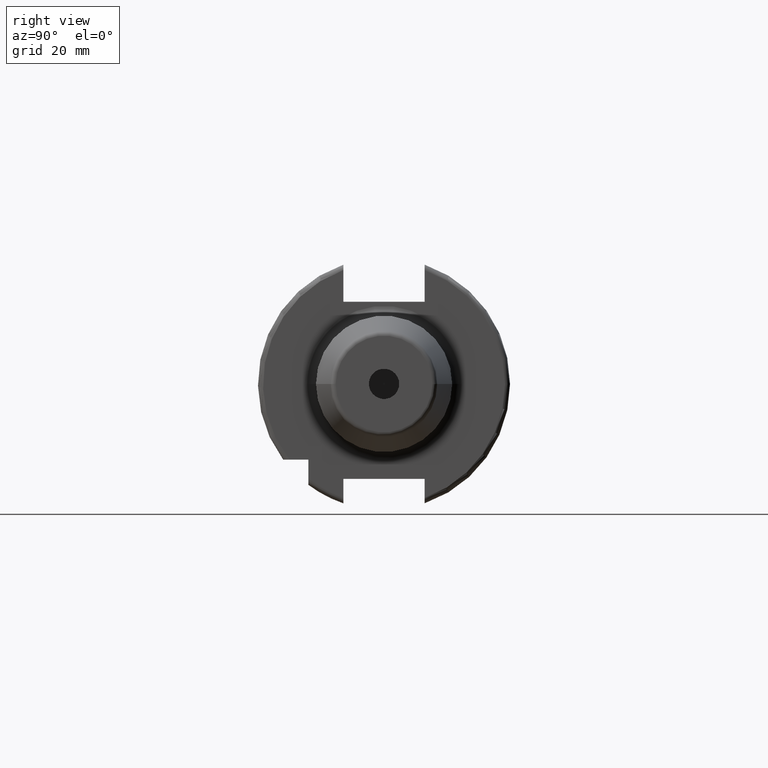
[diagram: clean part render]
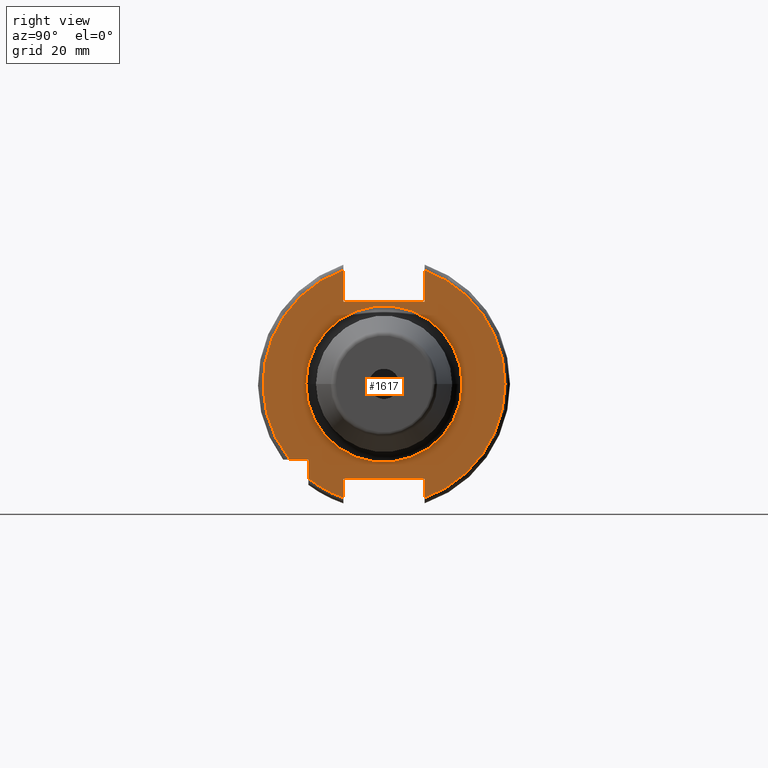
[diagram: same view with one face highlighted and labeled with its STEP entity id]
A machine part, right view. The second image highlights one B-rep face of the part: STEP entity #1617.
In plain terms, the highlighted planar face has unit normal (1, 0, 0).
Its self-contained STEP definition (entity closure, byte-faithful):
#136=DIRECTION('',(0.E0,0.E0,1.E0));
#137=VECTOR('',#136,3.799061927434E0);
#138=CARTESIAN_POINT('',(1.905E1,8.05E0,-2.259906192743E1));
#139=LINE('',#138,#137);
#140=DIRECTION('',(0.E0,-1.E0,0.E0));
#141=VECTOR('',#140,1.61E1);
#142=CARTESIAN_POINT('',(1.905E1,8.05E0,-1.88E1));
#143=LINE('',#142,#141);
#144=DIRECTION('',(0.E0,0.E0,1.E0));
#145=VECTOR('',#144,3.799061927434E0);
#146=CARTESIAN_POINT('',(1.905E1,-8.05E0,-2.259906192743E1));
#147=LINE('',#146,#145);
#148=DIRECTION('',(0.E0,0.E0,1.E0));
#149=VECTOR('',#148,3.722182030949E0);
#150=CARTESIAN_POINT('',(1.905E1,-1.5E1,-1.872218203095E1));
#151=LINE('',#150,#149);
#152=DIRECTION('',(0.E0,1.E0,0.E0));
#153=VECTOR('',#152,3.722182030949E0);
#154=CARTESIAN_POINT('',(1.905E1,-1.872218203095E1,-1.5E1));
#155=LINE('',#154,#153);
#156=DIRECTION('',(0.E0,0.E0,-1.E0));
#157=VECTOR('',#156,6.299061927434E0);
#158=CARTESIAN_POINT('',(1.905E1,-8.05E0,2.259906192743E1));
#159=LINE('',#158,#157);
#160=DIRECTION('',(0.E0,1.E0,0.E0));
#161=VECTOR('',#160,1.61E1);
#162=CARTESIAN_POINT('',(1.905E1,-8.05E0,1.63E1));
#163=LINE('',#162,#161);
#164=DIRECTION('',(0.E0,0.E0,-1.E0));
#165=VECTOR('',#164,6.299061927434E0);
#166=CARTESIAN_POINT('',(1.905E1,8.05E0,2.259906192743E1));
#167=LINE('',#166,#165);
#168=CARTESIAN_POINT('',(1.905E1,0.E0,0.E0));
#169=DIRECTION('',(1.E0,0.E0,0.E0));
#170=DIRECTION('',(0.E0,-1.E0,0.E0));
#171=AXIS2_PLACEMENT_3D('',#168,#169,#170);
#173=CARTESIAN_POINT('',(1.905E1,0.E0,0.E0));
#174=DIRECTION('',(1.E0,0.E0,0.E0));
#175=DIRECTION('',(0.E0,1.E0,0.E0));
#176=AXIS2_PLACEMENT_3D('',#173,#174,#175);
#640=CARTESIAN_POINT('',(1.905E1,0.E0,0.E0));
#641=DIRECTION('',(-1.E0,0.E0,0.E0));
#642=DIRECTION('',(0.E0,-3.355564818674E-1,-9.420200886800E-1));
#643=AXIS2_PLACEMENT_3D('',#640,#641,#642);
#645=CARTESIAN_POINT('',(1.905E1,0.E0,0.E0));
#646=DIRECTION('',(1.E0,0.E0,0.E0));
#647=DIRECTION('',(0.E0,-3.355564818674E-1,9.420200886800E-1));
#648=AXIS2_PLACEMENT_3D('',#645,#646,#647);
#692=CARTESIAN_POINT('',(1.905E1,0.E0,0.E0));
#693=DIRECTION('',(1.E0,0.E0,0.E0));
#694=DIRECTION('',(0.E0,3.355564818674E-1,-9.420200886800E-1));
#695=AXIS2_PLACEMENT_3D('',#692,#693,#694);
#1302=CARTESIAN_POINT('',(1.905E1,8.05E0,-2.259906192743E1));
#1303=CARTESIAN_POINT('',(1.905E1,8.05E0,-1.88E1));
#1304=VERTEX_POINT('',#1302);
#1305=VERTEX_POINT('',#1303);
#1306=CARTESIAN_POINT('',(1.905E1,-8.05E0,-1.88E1));
#1307=VERTEX_POINT('',#1306);
#1308=CARTESIAN_POINT('',(1.905E1,-8.05E0,-2.259906192743E1));
#1309=VERTEX_POINT('',#1308);
#1310=CARTESIAN_POINT('',(1.905E1,-8.05E0,2.259906192743E1));
#1311=CARTESIAN_POINT('',(1.905E1,-8.05E0,1.63E1));
#1312=VERTEX_POINT('',#1310);
#1313=VERTEX_POINT('',#1311);
#1314=CARTESIAN_POINT('',(1.905E1,8.05E0,1.63E1));
#1315=VERTEX_POINT('',#1314);
#1316=CARTESIAN_POINT('',(1.905E1,8.05E0,2.259906192743E1));
#1317=VERTEX_POINT('',#1316);
#1318=CARTESIAN_POINT('',(1.905E1,-1.5E1,-1.872218203095E1));
#1319=CARTESIAN_POINT('',(1.905E1,-1.5E1,-1.5E1));
#1320=VERTEX_POINT('',#1318);
#1321=VERTEX_POINT('',#1319);
#1322=CARTESIAN_POINT('',(1.905E1,-1.872218203095E1,-1.5E1));
#1323=VERTEX_POINT('',#1322);
#1394=CARTESIAN_POINT('',(1.905E1,-1.55E1,0.E0));
#1395=CARTESIAN_POINT('',(1.905E1,1.55E1,0.E0));
#1396=VERTEX_POINT('',#1394);
#1397=VERTEX_POINT('',#1395);
#1583=CARTESIAN_POINT('',(1.905E1,0.E0,0.E0));
#1584=DIRECTION('',(1.E0,0.E0,0.E0));
#1585=DIRECTION('',(0.E0,-1.E0,0.E0));
#1586=AXIS2_PLACEMENT_3D('',#1583,#1584,#1585);
#1587=PLANE('',#1586);
#1589=ORIENTED_EDGE('',*,*,#1588,.T.);
#1591=ORIENTED_EDGE('',*,*,#1590,.T.);
#1593=ORIENTED_EDGE('',*,*,#1592,.F.);
#1595=ORIENTED_EDGE('',*,*,#1594,.T.);
#1597=ORIENTED_EDGE('',*,*,#1596,.T.);
#1599=ORIENTED_EDGE('',*,*,#1598,.F.);
#1601=ORIENTED_EDGE('',*,*,#1600,.F.);
#1603=ORIENTED_EDGE('',*,*,#1602,.T.);
#1604=ORIENTED_EDGE('',*,*,#1569,.T.);
#1606=ORIENTED_EDGE('',*,*,#1605,.F.);
#1608=ORIENTED_EDGE('',*,*,#1607,.F.);
#1609=EDGE_LOOP('',(#1589,#1591,#1593,#1595,#1597,#1599,#1601,#1603,#1604,#1606,
#1608));
#1610=FACE_OUTER_BOUND('',#1609,.F.);
#1612=ORIENTED_EDGE('',*,*,#1611,.T.);
#1614=ORIENTED_EDGE('',*,*,#1613,.T.);
#1615=EDGE_LOOP('',(#1612,#1614));
#1616=FACE_BOUND('',#1615,.F.);
#1617=ADVANCED_FACE('',(#1610,#1616),#1587,.T.);
#172=CIRCLE('',#171,1.55E1);
#177=CIRCLE('',#176,1.55E1);
#644=CIRCLE('',#643,2.399E1);
#649=CIRCLE('',#648,2.399E1);
#696=CIRCLE('',#695,2.399E1);
#1569=EDGE_CURVE('',#1313,#1315,#163,.T.);
#1588=EDGE_CURVE('',#1304,#1305,#139,.T.);
#1590=EDGE_CURVE('',#1305,#1307,#143,.T.);
#1592=EDGE_CURVE('',#1309,#1307,#147,.T.);
#1594=EDGE_CURVE('',#1309,#1320,#644,.T.);
#1596=EDGE_CURVE('',#1320,#1321,#151,.T.);
#1598=EDGE_CURVE('',#1323,#1321,#155,.T.);
#1600=EDGE_CURVE('',#1312,#1323,#649,.T.);
#1602=EDGE_CURVE('',#1312,#1313,#159,.T.);
#1605=EDGE_CURVE('',#1317,#1315,#167,.T.);
#1607=EDGE_CURVE('',#1304,#1317,#696,.T.);
#1611=EDGE_CURVE('',#1396,#1397,#172,.T.);
#1613=EDGE_CURVE('',#1397,#1396,#177,.T.);